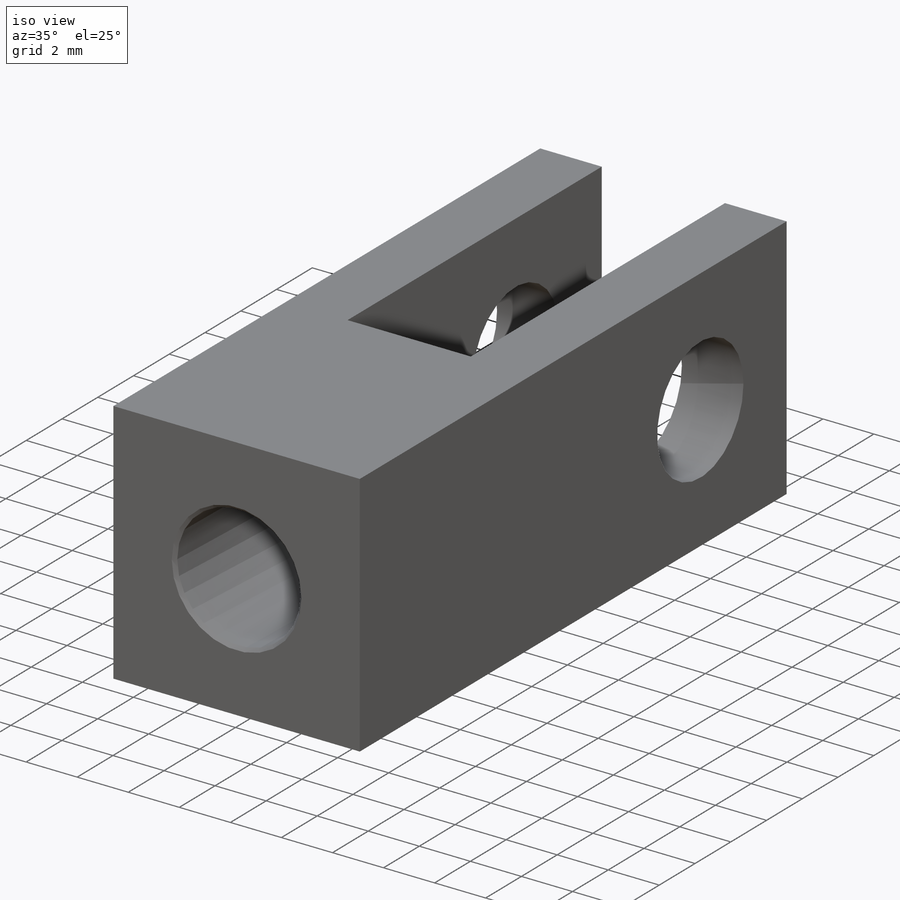
[diagram: iso view]
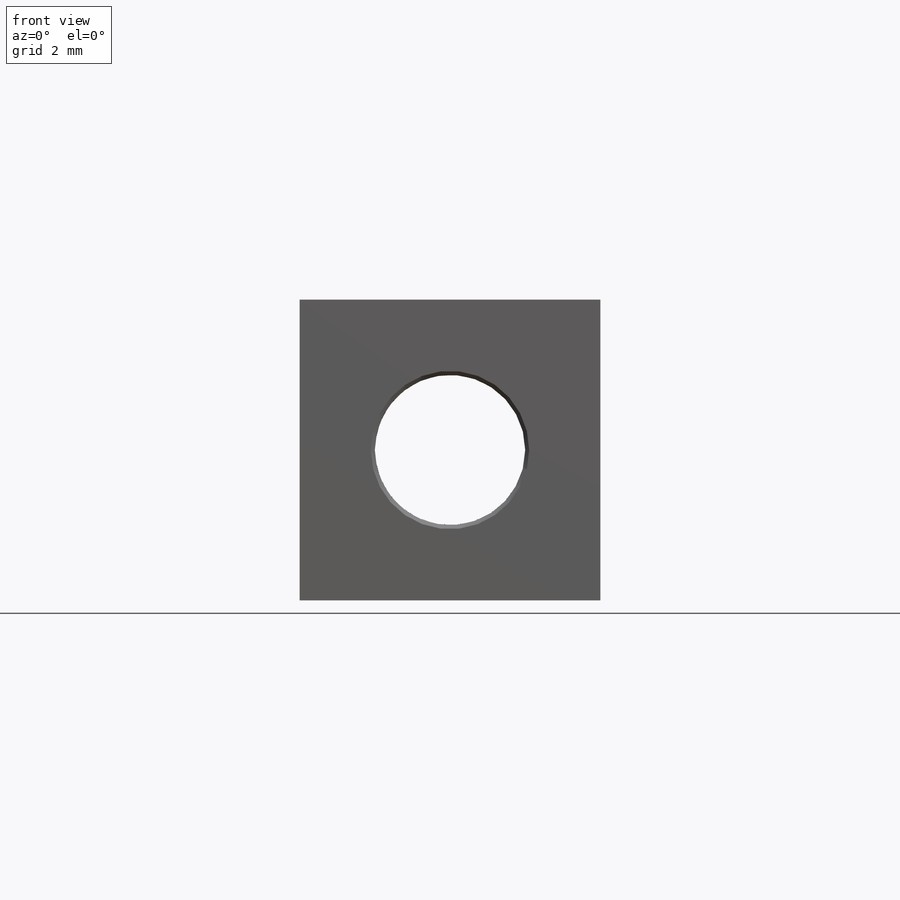
[diagram: front view]
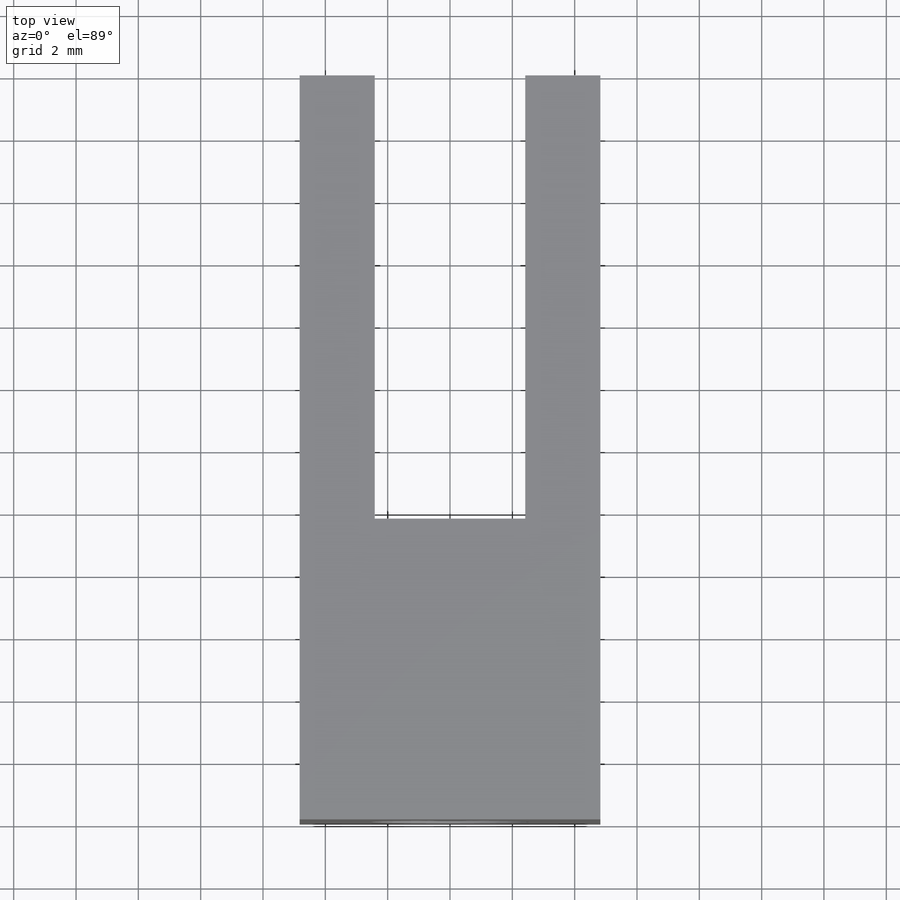
[diagram: top view]
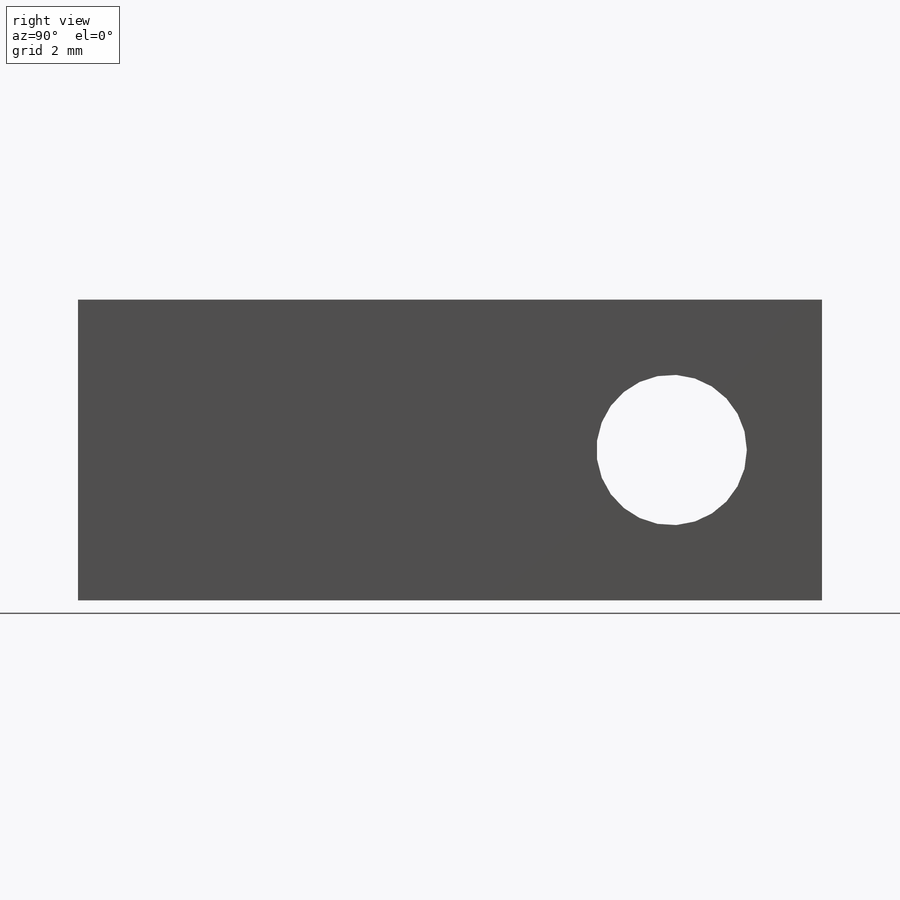
[diagram: right view]
SOLIDWORKS PART (.sldprt)
format: sldprt  version: not decoded by parser v0  size: 338,432 bytes
history: native  units: mm
features: sketch x13, hole x5, cut_extrude x2, material x1, extrude x1 (+14 scaffold rows collapsed)
feature tree (36):
  scaffold x14  (default folders/planes/origin — collapsed)
  material  "AISI 316 Annealed Stainless Steel Bar (SS)"
  sketch  "Sketch1"  dims[D=29.972mm G=12.954mm]
  extrude  "Extrude1"  Depth=12.954mm A=12.954mm
  sketch  "Sketch2"  dims[F=6.35mm E=17.526mm]
  cut_extrude  "Extrude2"  [1 undecoded]
  sketch  "Sketch5"  dims[J=6.35mm C=23.876mm]
  cut_extrude  "Extrude3"  [1 undecoded]
  hole  "1/4-28 Tapped Hole1"  Diameter=5.4102mm Depth=15.42034mm
  sketch  "Sketch4"
  sketch  "Sketch3"  dims[hole-wizard template sketch: 26 standard entries collapsed; hole parameters kept: c8.Tap Drill Dia.=5.4102mm c8.Tap Drill Depth=~15.42034mm c8.Thread Major Dia.=6.35mm c8.Thread Depth=12.7mm c8.Near C'Sink Dia.=6.6802mm c8.D6=~4.399409mm c8.Near C'Sink Angle=90.0deg c8.D7=~14.816244mm c8.Drill Angle=118.0deg]
  hole  "5/16-24 Tapped Hole1"  Diameter=7.9375mm Depth=12.446mm
  sketch  "Sketch7"
  sketch  "Sketch8"  dims[hole-wizard template sketch: 54 standard entries collapsed; hole parameters kept: c17.Thread Major Dia.=7.9375mm c17.Thru Tap Drill Depth=12.446mm c17.Near C'Sink Dia.=9.2075mm c17.D4=~3.666174mm c17.Near C'Sink Angle=90.0deg]
  hole  "7/16-20 Tapped Hole1"  Diameter=11.1125mm Depth=19.05mm
  sketch  "Sketch10"
  sketch  "Sketch9"  dims[hole-wizard template sketch: 54 standard entries collapsed; hole parameters kept: c17.Thread Major Dia.=11.1125mm c17.Thru Tap Drill Depth=19.05mm c17.Near C'Sink Dia.=12.3825mm c17.D4=~3.666174mm c17.Near C'Sink Angle=90.0deg]
  hole  "1/2-20 Tapped Hole1"  Diameter=12.7mm Depth=19.05mm
  sketch  "Sketch12"
  sketch  "Sketch13"  dims[hole-wizard template sketch: 54 standard entries collapsed; hole parameters kept: c17.Thread Major Dia.=12.7mm c17.Thru Tap Drill Depth=19.05mm c17.Near C'Sink Dia.=13.97mm c17.D4=~3.666174mm c17.Near C'Sink Angle=90.0deg]
  hole  "#10-32 Tapped Hole1"  Diameter=4.826mm Depth=9.653mm
  sketch  "3DSketch1"  dims[D1=4.826mm D2=4.826mm]
  sketch  "Sketch15"  dims[hole-wizard template sketch: 54 standard entries collapsed; hole parameters kept: c17.Thread Major Dia.=4.826mm c17.Thru Tap Drill Depth=9.653mm c17.Near C'Sink Dia.=5.08mm c17.D4=~3.666174mm c17.Near C'Sink Angle=90.0deg]
decode coverage: 15 of 21 modeling features carry decoded parameters
note: ~ marks probable driven/reference dimensions
note: 2 parameter values undecoded
summary: Diameter pulled from absorbed wizard sketch
note: suppression state not decoded; provenance and decode notes live in map.json
